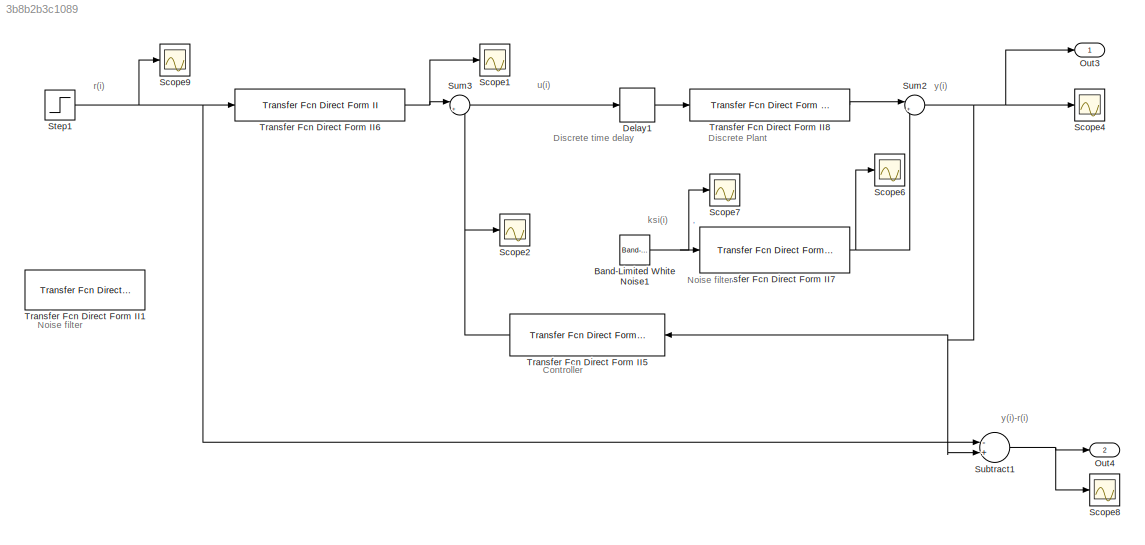
MODEL slx_3b8b2b3c1089
KIND model
CONFIG AbsTol = auto
CONFIG EnableMultiTasking = off
CONFIG FixedStep = auto
CONFIG MaxStep = auto
CONFIG MinStep = auto
CONFIG RelTol = 1e-3
CONFIG SampleTimeConstraint = Unconstrained
CONFIG Solver = VariableStepAuto
CONFIG SolverName = VariableStepAuto
CONFIG StartTime = 0.0
CONFIG StopTime = SimulationTime
BLOCK [Reference] Band-Limited White Noise1  REF=simulink/Sources/Band-Limited
White Noise
  Ports = [0, 1]
  SourceBlock = simulink/Sources/Band-Limited\nWhite Noise
  SourceProductBaseCode = SL
  SourceProductName = Simulink
  SourceType = Band-Limited White Noise.
BLOCK [Delay] Delay1
  DelayLength = 1
  InputPortMap = u0
  Ports = [1, 1]
BLOCK [Outport] Out3
  IconDisplay = Port number
BLOCK [Outport] Out4
  IconDisplay = Port number
  Port = 2
BLOCK [Scope] Scope1
  Floating = off
  NumInputPorts = 1
  Ports = [1]
  ScopeSpecificationString = Simulink.scopes.TimeScopeBlockCfg('CurrentConfiguration', extmgr.ConfigurationSet(extmgr.Configuration('Core','General UI',true),extmgr.Configuration('Core','Source UI',true),extmgr.Configuration('Sources','WiredSimulink',true),extmgr.Configuration('Visuals','Time Domain',true,'SerializedDisplays',{struct('MinYLimReal','-3.47222','MaxYLimReal','31.25','YLabelReal','','MinYLimMag','0.00000','MaxYLi...<+1408ch>
BLOCK [Scope] Scope2
  Floating = off
  NumInputPorts = 1
  Ports = [1]
  ScopeSpecificationString = Simulink.scopes.TimeScopeBlockCfg('CurrentConfiguration', extmgr.ConfigurationSet(extmgr.Configuration('Core','General UI',true),extmgr.Configuration('Core','Source UI',true),extmgr.Configuration('Sources','WiredSimulink',true,'DataLoggingVariableName','ScopeData6'),extmgr.Configuration('Visuals','Time Domain',true,'SerializedDisplays',{struct('MinYLimReal','-22.85228','MaxYLimReal','2.50908','YLa...<+1459ch>
BLOCK [Scope] Scope4
  Floating = off
  NumInputPorts = 1
  Ports = [1]
  ScopeSpecificationString = Simulink.scopes.TimeScopeBlockCfg('CurrentConfiguration', extmgr.ConfigurationSet(extmgr.Configuration('Core','General UI',true),extmgr.Configuration('Core','Source UI',true),extmgr.Configuration('Sources','WiredSimulink',true,'DataLoggingVariableName','ScopeData1'),extmgr.Configuration('Visuals','Time Domain',true,'SerializedDisplays',{struct('MinYLimReal','-0.62791','MaxYLimReal','5.7639','YLabe...<+1394ch>
BLOCK [Scope] Scope6
  Floating = off
  NumInputPorts = 1
  Ports = [1]
  ScopeSpecificationString = Simulink.scopes.TimeScopeBlockCfg('CurrentConfiguration', extmgr.ConfigurationSet(extmgr.Configuration('Core','General UI',true),extmgr.Configuration('Core','Source UI',true),extmgr.Configuration('Sources','WiredSimulink',true,'DataLoggingVariableName','ScopeData2'),extmgr.Configuration('Visuals','Time Domain',true,'SerializedDisplays',{struct('MinYLimReal','-0.25688','MaxYLimReal','0.25262','YLab...<+1421ch>
BLOCK [Scope] Scope7
  Floating = off
  NumInputPorts = 1
  Ports = [1]
  ScopeSpecificationString = Simulink.scopes.TimeScopeBlockCfg('CurrentConfiguration', extmgr.ConfigurationSet(extmgr.Configuration('Core','General UI',true),extmgr.Configuration('Core','Source UI',true),extmgr.Configuration('Sources','WiredSimulink',true,'DataLoggingVariableName','ScopeData3'),extmgr.Configuration('Visuals','Time Domain',true,'SerializedDisplays',{struct('MinYLimReal','-0.14385','MaxYLimReal','0.15456','YLab...<+1360ch>
BLOCK [Scope] Scope8
  Floating = off
  NumInputPorts = 1
  Ports = [1]
  ScopeSpecificationString = Simulink.scopes.TimeScopeBlockCfg('CurrentConfiguration', extmgr.ConfigurationSet(extmgr.Configuration('Core','General UI',true),extmgr.Configuration('Core','Source UI',true),extmgr.Configuration('Sources','WiredSimulink',true,'DataLoggingVariableName','ScopeData4'),extmgr.Configuration('Visuals','Time Domain',true,'SerializedDisplays',{struct('MinYLimReal','-1.18853','MaxYLimReal','5.5747','YLabe...<+1400ch>
BLOCK [Scope] Scope9
  Floating = off
  NumInputPorts = 1
  Ports = [1]
  ScopeSpecificationString = Simulink.scopes.TimeScopeBlockCfg('CurrentConfiguration', extmgr.ConfigurationSet(extmgr.Configuration('Core','General UI',true),extmgr.Configuration('Core','Source UI',true),extmgr.Configuration('Sources','WiredSimulink',true,'DataLoggingVariableName','ScopeData5'),extmgr.Configuration('Visuals','Time Domain',true,'SerializedDisplays',{struct('MinYLimReal','-0.625','MaxYLimReal','5.625','YLabelRe...<+1420ch>
BLOCK [Step] Step1
  After = RegulatedValue
  SampleTime = SampleTime
BLOCK [Sum] Subtract1
  InputSameDT = off
  Inputs = -+
  OutDataTypeStr = Inherit: Inherit via internal rule
  Ports = [2, 1]
  SaturateOnIntegerOverflow = off
BLOCK [Sum] Sum2
  IconShape = round
  InputSameDT = off
  Inputs = |++
  OutDataTypeStr = Inherit: Inherit via internal rule
  Ports = [2, 1]
  SaturateOnIntegerOverflow = off
BLOCK [Sum] Sum3
  IconShape = round
  InputSameDT = off
  Inputs = |++
  OutDataTypeStr = Inherit: Inherit via internal rule
  Ports = [2, 1]
  SaturateOnIntegerOverflow = off
BLOCK [Reference] Transfer Fcn Direct Form II1  REF=simulink/Additional Math
& Discrete/Additional
Discrete/Transfer Fcn
Direct Form II
  Commented = on
  Ports = [1, 1]
  SourceBlock = simulink/Additional Math\n& Discrete/Additional\nDiscrete/Transfer Fcn\nDirect Form II
  SourceProductBaseCode = SL
  SourceProductName = Simulink
  SourceType = Transfer Fcn Direct Form II
BLOCK [Reference] Transfer Fcn Direct Form II5  REF=simulink/Additional Math
& Discrete/Additional
Discrete/Transfer Fcn
Direct Form II
  Ports = [1, 1]
  SourceBlock = simulink/Additional Math\n& Discrete/Additional\nDiscrete/Transfer Fcn\nDirect Form II
  SourceProductBaseCode = SL
  SourceProductName = Simulink
  SourceType = Transfer Fcn Direct Form II
BLOCK [Reference] Transfer Fcn Direct Form II6  REF=simulink/Additional Math
& Discrete/Additional
Discrete/Transfer Fcn
Direct Form II
  Ports = [1, 1]
  SourceBlock = simulink/Additional Math\n& Discrete/Additional\nDiscrete/Transfer Fcn\nDirect Form II
  SourceProductBaseCode = SL
  SourceProductName = Simulink
  SourceType = Transfer Fcn Direct Form II
BLOCK [Reference] Transfer Fcn Direct Form II7  REF=simulink/Additional Math
& Discrete/Additional
Discrete/Transfer Fcn
Direct Form II
  Ports = [1, 1]
  SourceBlock = simulink/Additional Math\n& Discrete/Additional\nDiscrete/Transfer Fcn\nDirect Form II
  SourceProductBaseCode = SL
  SourceProductName = Simulink
  SourceType = Transfer Fcn Direct Form II
BLOCK [Reference] Transfer Fcn Direct Form II8  REF=simulink/Additional Math
& Discrete/Additional
Discrete/Transfer Fcn
Direct Form II
  Ports = [1, 1]
  SourceBlock = simulink/Additional Math\n& Discrete/Additional\nDiscrete/Transfer Fcn\nDirect Form II
  SourceProductBaseCode = SL
  SourceProductName = Simulink
  SourceType = Transfer Fcn Direct Form II
ANNOTATION (root): Controller
ANNOTATION (root): Discrete Plant
ANNOTATION (root): Discrete time delay
ANNOTATION (root): Noise filter
ANNOTATION (root): ksi(i)
ANNOTATION (root): r(i)
ANNOTATION (root): u(i)
ANNOTATION (root): y(i)
ANNOTATION (root): y(i)-r(i)
NET Band-Limited White Noise1:1 -> Scope7:1, Transfer Fcn Direct Form II7:1
LINE Delay1:1 -> Transfer Fcn Direct Form II8:1
NET Step1:1 -> Scope9:1, Subtract1:1, Transfer Fcn Direct Form II6:1
NET Subtract1:1 -> Out4:1, Scope8:1
NET Sum2:1 -> Out3:1, Scope4:1, Subtract1:2, Transfer Fcn Direct Form II5:1
LINE Sum3:1 -> Delay1:1
NET Transfer Fcn Direct Form II5:1 -> Scope2:1, Sum3:2
NET Transfer Fcn Direct Form II6:1 -> Scope1:1, Sum3:1
NET Transfer Fcn Direct Form II7:1 -> Scope6:1, Sum2:2
LINE Transfer Fcn Direct Form II8:1 -> Sum2:1
note: NET lines group one-source signal fan-out (src -> all destinations, sorted); 1:1 wires keep LINE
